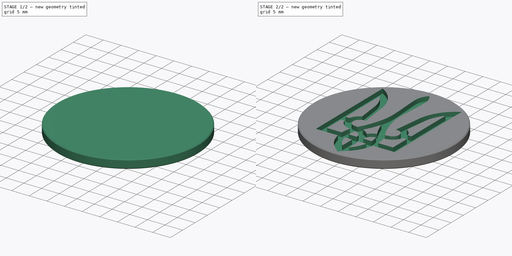
[diagram: build sequence overview — one tinted view per stage of 2, left to right]
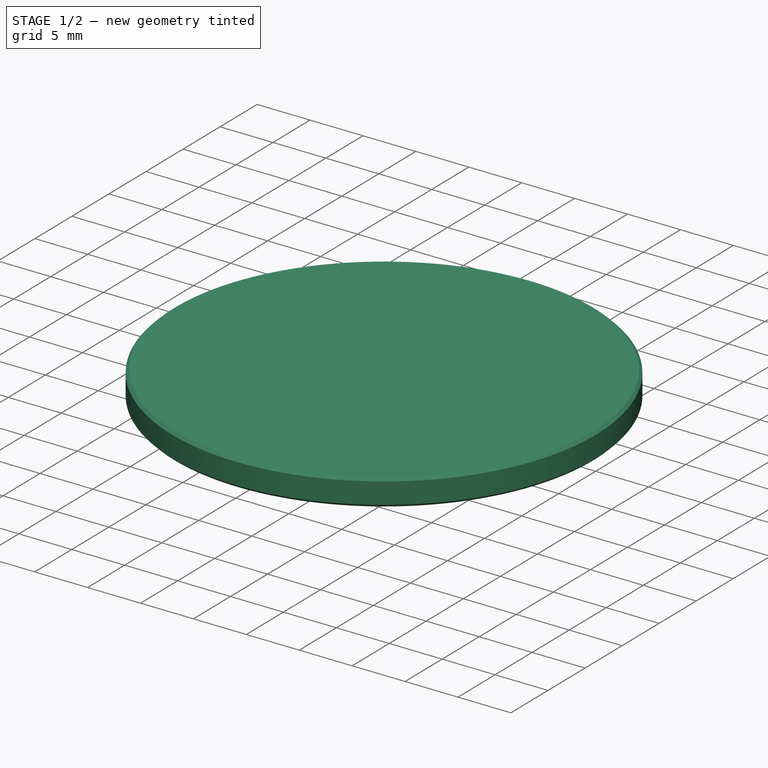
[diagram: stage 1 of 2 — iso view after this stage's code; geometry added in this stage tinted green]
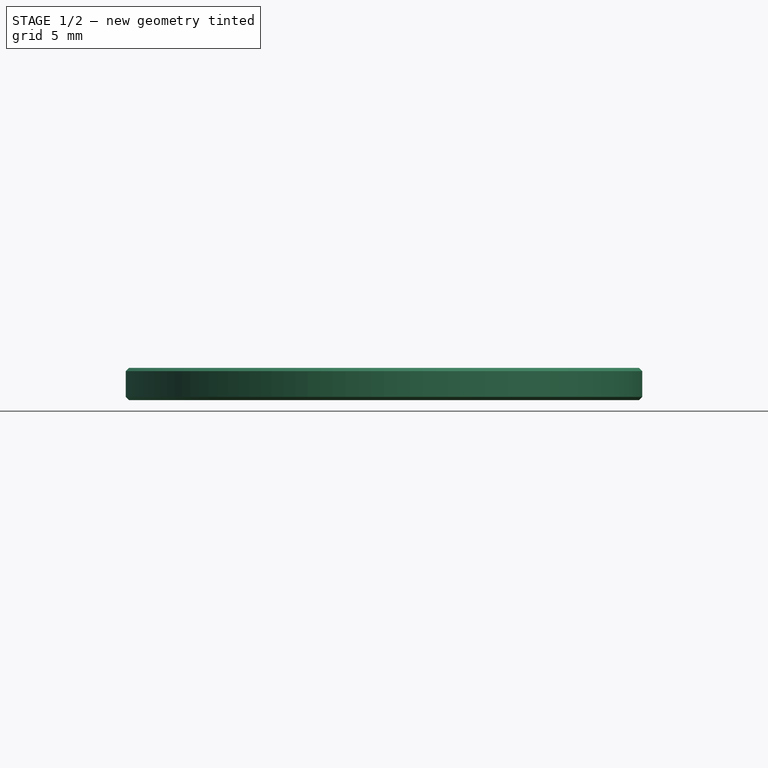
[diagram: stage 1 of 2 — front view after this stage's code; geometry added in this stage tinted green]
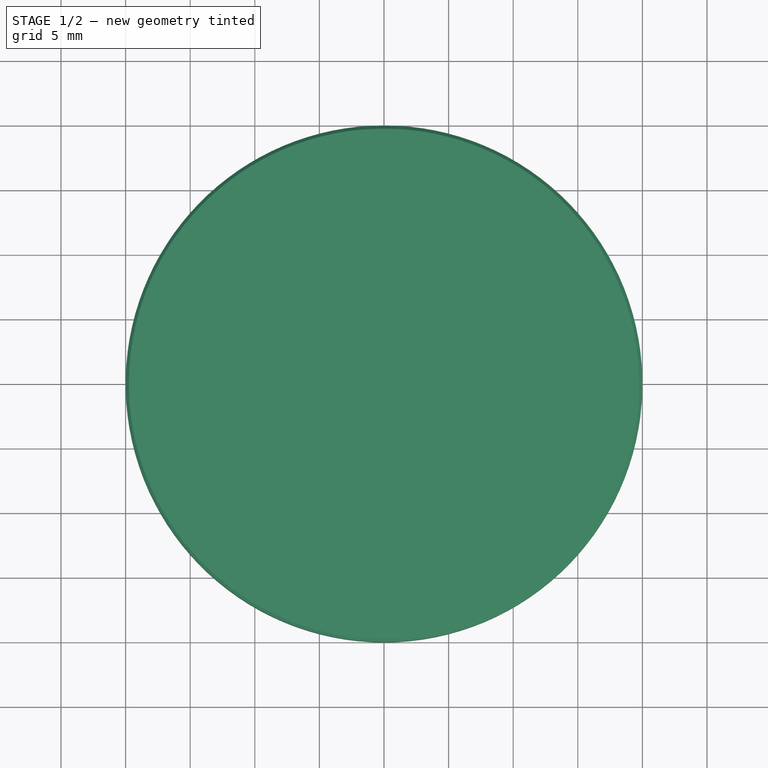
[diagram: stage 1 of 2 — top view after this stage's code; geometry added in this stage tinted green]
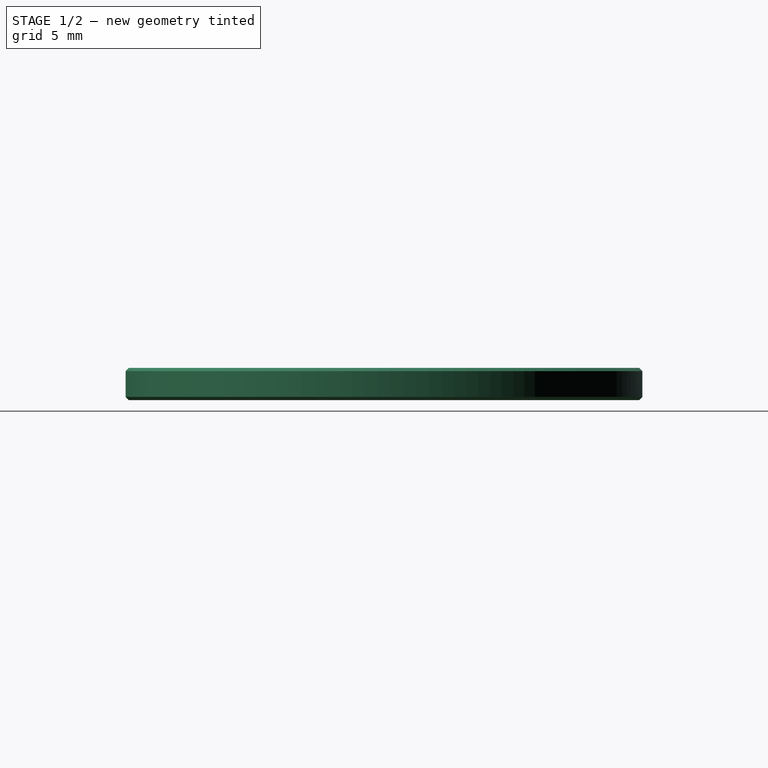
[diagram: stage 1 of 2 — right view after this stage's code; geometry added in this stage tinted green]
FCSTD DOCUMENT  (FreeCAD 0.20R29603 (Git))
Label: ukraine-14053
License: All rights reserved
LicenseURL: http://en.wikipedia.org/wiki/All_rights_reserved
objects: Part::Feature×25, Sketcher::SketchObject×5, App::DocumentObjectGroup×4, PartDesign::Plane×2, Part::FeaturePython×2, App::TextDocument×1, Spreadsheet::Sheet×1, PartDesign::Revolution×1, PartDesign::Pocket×1, PartDesign::Body×1
note: 39 computed .brp shape members not serialized (recipe doc carries the construction recipe); baked Part::Feature solids carry a one-line shape summary decoded from their .brp

FEATURE [App::TextDocument] Text_document  label="Text document"
  Text = https://publicdomainvectors.org/en/free-clipart/Ukraine-Armed-Forces-emblem-vector-image/14053.html
FEATURE [Spreadsheet::Sheet] Spreadsheet
  cells = A2=Vector X center; B2=vec_x; C2(dim_vec_x)==-74.5 mm; A3=Vector Y center; B3=vec_y; C3(dim_vec_y)==73.75 mm; A4=Coin radius; B4=coin_r; C4(dim_coin_r)==20 mm; A5=Coin height; B5=coin_h; C5(dim_coin_h)==2.5 mm; A6=Engrave depth; B6=engrave_h; C6(dim_engrave_h)==dim_coin_h / 2; A7=SVG Scale; B7=svg_scale; C7=0.68; A8=Chamfer width; B8=chamfer_w; C8(dim_chamfer_w)==dim_coin_h / 10; A9=Edge dimple radius; B9=dimple_r; C9(dim_dimple_r)==0.5 mm; A10=Edge dimple count; B10=dimple_count; C10(dim_dimple_count)=64
FEATURE [PartDesign::Plane] DatumPlane  label="BaseXYDatumPlane"
  Length = 60
  MapMode = 5
  ResizeMode = 0
  Support = -> [XY_Plane]
  Width = 60
FEATURE [Sketcher::SketchObject] Sketch001  label="CircleSketch"
  FullyConstrained = true
  MapMode = 5
  Support = -> [DatumPlane]
  expr: Constraints[1] = Spreadsheet.dim_coin_r - Spreadsheet.dim_chamfer_w
  expr: Constraints[3] = Spreadsheet.dim_coin_r - 1 mm
  sketch-geometry (2):
    g0: Circle CenterX=0 CenterY=0 CenterZ=0 NormalX=0 NormalY=0 NormalZ=1 AngleXU=0 Radius=19.75
    g1: Circle CenterX=0 CenterY=0 CenterZ=0 NormalX=0 NormalY=0 NormalZ=1 AngleXU=0 Radius=19
  constraints (4):
    c: Coincident(g0,g-1)
    c: Radius(g0) = 19.75
    c: Coincident(g1,g0)
    c: Radius(g1) = 19
FEATURE [PartDesign::Plane] DatumPlane001  label="ProfileYZDatumPlane"
  Length = 60
  MapMode = 5
  Placement = pos=(0,0,0) rot=(0.57735,0.57735,0.57735;2.0944rad)
  ResizeMode = 0
  Support = -> [YZ_Plane]
  Width = 60
FEATURE [Sketcher::SketchObject] Sketch  label="CoinProfileSketch"
  FullyConstrained = true
  MapMode = 5
  Placement = pos=(0,0,0) rot=(0.57735,0.57735,0.57735;2.0944rad)
  Support = -> [DatumPlane001]
  expr: Constraints[22] = Spreadsheet.dim_chamfer_w
  expr: Constraints[24] = Spreadsheet.dim_coin_h
  expr: Constraints[25] = Spreadsheet.dim_coin_r
  expr: Constraints[26] = Spreadsheet.dim_coin_r
  expr: Constraints[27] = Spreadsheet.dim_coin_h
  sketch-geometry (10):
    g0: LineSegment StartX=0 StartY=-1e-16 StartZ=0 EndX=0 EndY=-2.5 EndZ=0
    g1: LineSegment StartX=0 StartY=-1e-16 StartZ=0 EndX=19.75 EndY=-1e-16 EndZ=0
    g2: LineSegment StartX=19.75 StartY=-1e-16 StartZ=0 EndX=20 EndY=-0.25 EndZ=0
    g3: LineSegment StartX=20 StartY=-0.25 StartZ=0 EndX=20 EndY=-2.25 EndZ=0
    g4: LineSegment StartX=20 StartY=-2.25 StartZ=0 EndX=19.75 EndY=-2.5 EndZ=0
    g5: LineSegment StartX=19.75 StartY=-2.5 StartZ=0 EndX=0 EndY=-2.5 EndZ=0
    g6: LineSegment StartX=19.75 StartY=-1e-16 StartZ=0 EndX=20 EndY=-1e-16 EndZ=0
    g7: LineSegment StartX=20 StartY=-1e-16 StartZ=0 EndX=20 EndY=-0.25 EndZ=0
    g8: LineSegment StartX=20 StartY=-2.25 StartZ=0 EndX=20 EndY=-2.5 EndZ=0
    g9: LineSegment StartX=19.75 StartY=-2.5 StartZ=0 EndX=20 EndY=-2.5 EndZ=0
  constraints (28):
    c: Vertical(g0)
    c: Coincident(g0,g1)
    c: Horizontal(g1)
    c: Coincident(g1,g2)
    c: Coincident(g2,g3)
    c: Vertical(g3)
    c: Coincident(g3,g4)
    c: Coincident(g4,g5)
    c: Coincident(g5,g0)
    c: Horizontal(g5)
    c: Coincident(g6,g1)
    c: Horizontal(g6)
    c: Coincident(g7,g6)
    c: Coincident(g7,g2)
    c: Coincident(g8,g3)
    c: Vertical(g8)
    c: Coincident(g9,g4)
    c: Coincident(g9,g8)
    c: Horizontal(g9)
    c: Vertical(g7)
    c: Equal(g6,g7)
    c: Equal(g8,g9)
    c: DistanceY(g8,g8) = 0.25
    c: Equal(g8,g7)
    c: DistanceY(g8,g6) = 2.5
    c: DistanceX(g0,g8) = 20
    c: DistanceX(g-1,g6) = 20
    c: DistanceY(g0,g-1) = 2.5
FEATURE [PartDesign::Revolution] Revolution  label="CoinRevolution"
  Angle = 360
  Axis = (-1e-16,1e-16,1)
  Base = (0,0,0)
  Placement = pos=(0,0,0) rot=(0.57735,0.57735,0.57735;2.0944rad)
  Profile = -> Sketch
  ReferenceAxis = -> Sketch [V_Axis]
  Reversed = true
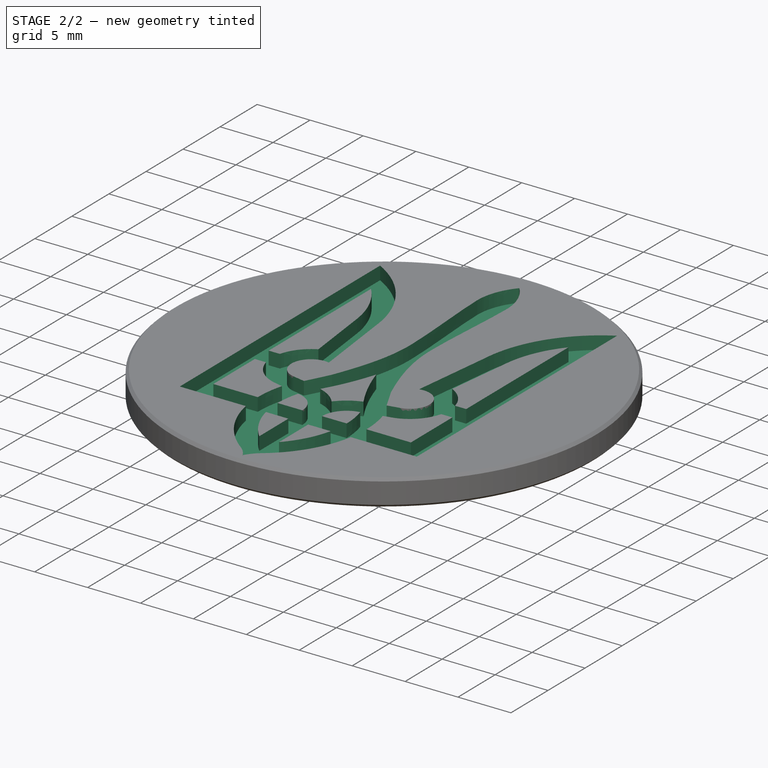
[diagram: stage 2 of 2 — iso view after this stage's code; geometry added in this stage tinted green]
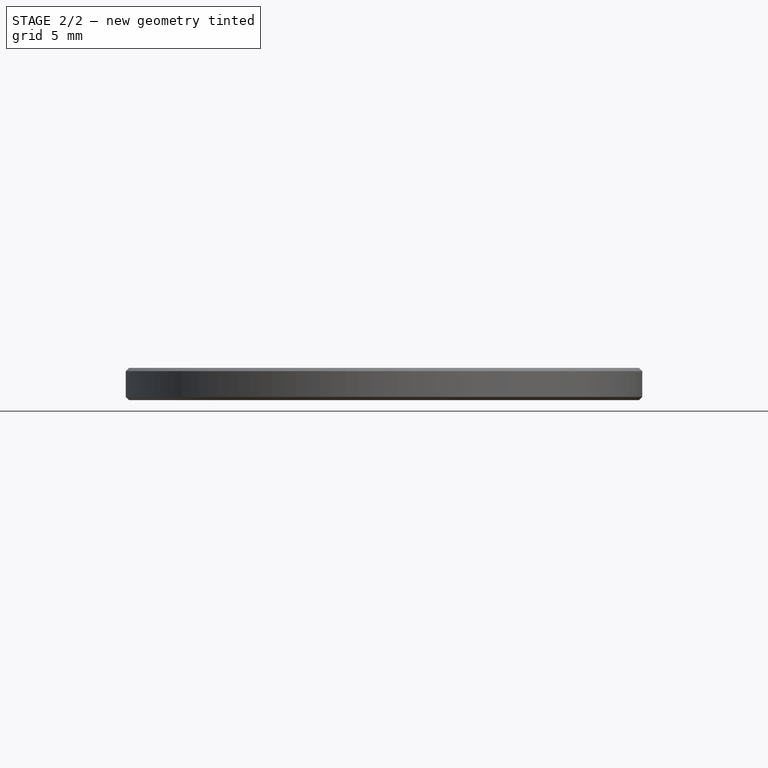
[diagram: stage 2 of 2 — front view after this stage's code; geometry added in this stage tinted green]
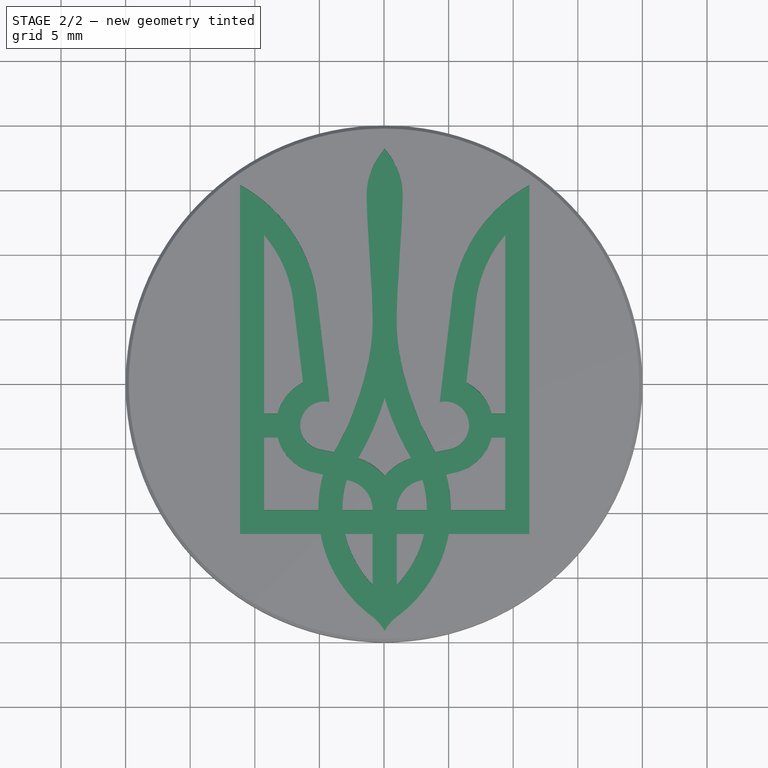
[diagram: stage 2 of 2 — top view after this stage's code; geometry added in this stage tinted green]
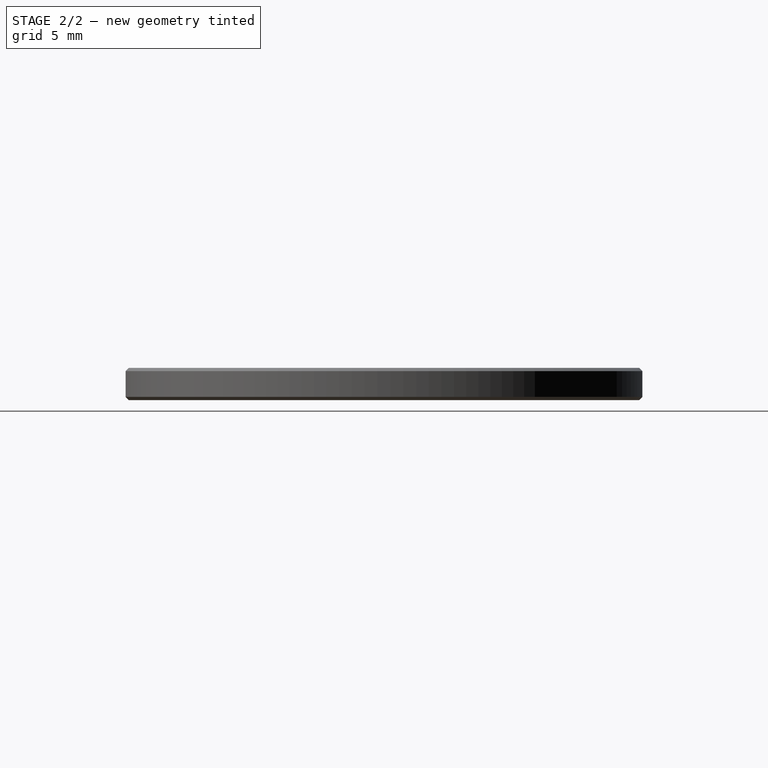
[diagram: stage 2 of 2 — right view after this stage's code; geometry added in this stage tinted green]
FEATURE [Sketcher::SketchObject] Sketch002  label="CoinEdgeProfileSketch"
  FullyConstrained = true
  MapMode = 5
  Placement = pos=(0,0,0) rot=(0.57735,0.57735,0.57735;2.0944rad)
  Support = -> [DatumPlane001]
  expr: Constraints[20] = Spreadsheet.dim_chamfer_w
  expr: Constraints[22] = Spreadsheet.dim_coin_h
  expr: Constraints[23] = Spreadsheet.dim_coin_r
  expr: Constraints[24] = Spreadsheet.dim_coin_r
  expr: Constraints[25] = Spreadsheet.dim_coin_h
  sketch-geometry (13):
    g0: LineSegment StartX=0 StartY=0 StartZ=0 EndX=0 EndY=-2.5 EndZ=0
    g1: LineSegment StartX=19.75 StartY=0 StartZ=0 EndX=20 EndY=-0.25 EndZ=0
    g2: LineSegment StartX=20 StartY=-0.25 StartZ=0 EndX=20 EndY=-2.25 EndZ=0
    g3: LineSegment StartX=20 StartY=-2.25 StartZ=0 EndX=19.75 EndY=-2.5 EndZ=0
    g4: LineSegment StartX=19.75 StartY=0 StartZ=0 EndX=20 EndY=0 EndZ=0
    g5: LineSegment StartX=20 StartY=0 StartZ=0 EndX=20 EndY=-0.25 EndZ=0
    g6: LineSegment StartX=20 StartY=-2.25 StartZ=0 EndX=20 EndY=-2.5 EndZ=0
    g7: LineSegment StartX=19.75 StartY=-2.5 StartZ=0 EndX=20 EndY=-2.5 EndZ=0
    g8: LineSegment StartX=0 StartY=0 StartZ=0 EndX=19 EndY=0 EndZ=0
    g9: LineSegment StartX=19 StartY=0 StartZ=0 EndX=19.75 EndY=0 EndZ=0
    g10: LineSegment StartX=19.75 StartY=-2.5 StartZ=0 EndX=19 EndY=-2.5 EndZ=0
    g11: LineSegment StartX=19 StartY=-2.5 StartZ=0 EndX=0 EndY=-2.5 EndZ=0
    g12: LineSegment StartX=19 StartY=0 StartZ=0 EndX=19 EndY=-2.5 EndZ=0
  constraints (36):
    c: Vertical(g0)
    c: Coincident(g0,g8)
    c: Coincident(g9,g1)
    c: Coincident(g1,g2)
    c: Vertical(g2)
    c: Coincident(g2,g3)
    c: Coincident(g3,g10)
    c: Coincident(g11,g0)
    c: Coincident(g4,g9)
    c: Horizontal(g4)
    c: Coincident(g5,g4)
    c: Coincident(g5,g1)
    c: Coincident(g6,g2)
    c: Vertical(g6)
    c: Coincident(g7,g3)
    c: Coincident(g7,g6)
    c: Horizontal(g7)
    c: Vertical(g5)
    c: Equal(g4,g5)
    c: Equal(g6,g7)
    c: DistanceY(g6,g6) = 0.25
    c: Equal(g6,g5)
    c: DistanceY(g6,g4) = 2.5
    c: DistanceX(g0,g6) = 20
    c: DistanceX(g-1,g4) = 20
    c: DistanceY(g0,g-1) = 2.5
    c: Coincident(g8,g9)
    c: Horizontal(g8)
    c: Horizontal(g9)
    c: Coincident(g10,g11)
    c: Horizontal(g10)
    c: Horizontal(g11)
    c: Coincident(g12,g9)
    c: Coincident(g12,g10)
    c: Vertical(g12)
    c: DistanceX(g9,g4) = 1
FEATURE [Sketcher::SketchObject] Sketch004  label="EdgeDimpleSketch"
  FullyConstrained = true
  MapMode = 5
  Support = -> [DatumPlane]
  expr: Constraints[2] = Spreadsheet.dim_coin_r
  sketch-geometry (2):
    g0: LineSegment StartX=0 StartY=0 StartZ=0 EndX=20 EndY=0 EndZ=0
    g1: Circle CenterX=20 CenterY=0 CenterZ=0 NormalX=0 NormalY=0 NormalZ=1 AngleXU=0 Radius=0.5
  constraints (5):
    c: Horizontal(g0)
    c: Coincident(g1,g0)
    c: DistanceX(g0,g0) = 20
    c: Coincident(g0,g-1)
    c: Radius(g1) = 0.5
FEATURE [Part::Feature] path4055
  shape: bbox 59.55 x 66.26 x 2e-07 mm, 1 faces, 0 solids (baked)
FEATURE [Part::Feature] path4057
  shape: bbox 64.32 x 69.97 x 2e-07 mm, 1 faces, 0 solids (baked)
FEATURE [Part::Feature] path4057001
  shape: bbox 54.77 x 62.55 x 2e-07 mm, 1 faces, 0 solids (baked)
FEATURE [Part::Feature] path3795
  shape: bbox 59.55 x 66.26 x 2e-07 mm, 1 faces, 0 solids (baked)
FEATURE [Part::Feature] path3797
  shape: bbox 64.32 x 69.97 x 2e-07 mm, 1 faces, 0 solids (baked)
FEATURE [Part::Feature] path3797001
  shape: bbox 54.77 x 62.55 x 2e-07 mm, 1 faces, 0 solids (baked)
FEATURE [Part::Feature] path4696
  shape: bbox 68.74 x 68.74 x 4.018e-07 mm, 1 faces, 0 solids (baked)
FEATURE [Part::Feature] path7306_9
  shape: bbox 32.94 x 54.88 x 2e-07 mm, 1 faces, 0 solids (baked)
FEATURE [Part::Feature] path7306_9001
  shape: bbox 4.428 x 20.31 x 2e-07 mm, 1 faces, 0 solids (baked)
FEATURE [Part::Feature] path7306_9002
  shape: bbox 4.428 x 20.31 x 2e-07 mm, 1 faces, 0 solids (baked)
FEATURE [Part::Feature] path7306_9003
  shape: bbox 6.026 x 8.856 x 2e-07 mm, 1 faces, 0 solids (baked)
FEATURE [Part::Feature] path7306_9004
  shape: bbox 6.722 x 8.234 x 2e-07 mm, 1 faces, 0 solids (baked)
FEATURE [Part::Feature] path7306_9005
  shape: bbox 6.722 x 8.234 x 2e-07 mm, 1 faces, 0 solids (baked)
FEATURE [Part::Feature] path7306_9006
  shape: bbox 3.431 x 3.388 x 2e-07 mm, 1 faces, 0 solids (baked)
FEATURE [Part::Feature] path7306_9007
  shape: bbox 3.431 x 3.388 x 2e-07 mm, 1 faces, 0 solids (baked)
FEATURE [Part::Feature] path7306_9008
  shape: bbox 3.12 x 5.779 x 2e-07 mm, 1 faces, 0 solids (baked)
FEATURE [Part::Feature] path7306_9009
  shape: bbox 3.12 x 5.779 x 2e-07 mm, 1 faces, 0 solids (baked)
FEATURE [App::DocumentObjectGroup] Group  label="SVGGroup"
  Group = -> [path7306_9,path7306_9001,path7306_9002,path7306_9003,path7306_9004,path7306_9005,path7306_9006,path7306_9007,path7306_9008,path7306_9009]
FEATURE [Part::Feature] path2915
  shape: bbox 72.46 x 72.44 x 2e-07 mm, 1 faces, 0 solids (baked)
FEATURE [Part::Feature] path2915001
  shape: bbox 65.01 x 65.03 x 2e-07 mm, 1 faces, 0 solids (baked)
FEATURE [Part::Feature] path4441
  shape: bbox 56.13 x 55 x 2e-07 mm, 1 faces, 0 solids (baked)
FEATURE [Part::Feature] path4494
  shape: bbox 55.54 x 55.3 x 2e-07 mm, 1 faces, 0 solids (baked)
FEATURE [Part::Feature] path4599
  shape: bbox 55.56 x 56.01 x 2e-07 mm, 1 faces, 0 solids (baked)
FEATURE [Part::Feature] path4601
  shape: bbox 56.21 x 54.79 x 2e-07 mm, 1 faces, 0 solids (baked)
FEATURE [Part::Feature] path4639
  shape: bbox 69.76 x 66.21 x 2e-07 mm, 1 faces, 0 solids (baked)
FEATURE [App::DocumentObjectGroup] Group001  label="BadgeGroup"
  Group = -> [path2915001,path2915,path4441,path4494,path4599,path4601,path4639,path4055,path4057,path4057001,path3795,path3797,path3797001,path4696]
FEATURE [Part::Feature] path4639001
  shape: bbox 32.85 x 53.69 x 2e-07 mm, 1 faces, 0 solids (baked)
FEATURE [App::DocumentObjectGroup] Group002  label="CrestGroup"
  Group = -> [path4639001]
FEATURE [Part::FeaturePython] Clone  label="resize070"  # Draft clone (typed FeaturePython)
  AttacherType = Attacher::AttachEngine3D
  Fuse = false
  Objects = -> [path7306_9009,path7306_9,path7306_9001,path7306_9002,path7306_9003,path7306_9004,path7306_9005,path7306_9006,path7306_9007,path7306_9008]
  Placement = pos=(-77,76,0) rot=(0,0,1;0rad)
  Scale = (0.7,0.7,0.7)
FEATURE [Part::FeaturePython] Clone001  label="resize068"  # Draft clone (typed FeaturePython)
  AttacherType = Attacher::AttachEngine3D
  Fuse = false
  Objects = -> [path7306_9,path7306_9001,path7306_9002,path7306_9003,path7306_9004,path7306_9005,path7306_9006,path7306_9007,path7306_9008,path7306_9009]
  Placement = pos=(-74.5,73.75,0) rot=(0,0,1;0rad)
  Scale = (0.68,0.68,0.68)
FEATURE [App::DocumentObjectGroup] Group003  label="Group"
  Group = -> [Clone,Clone001]
FEATURE [Sketcher::SketchObject] Sketch005  label="VectorSketch"
  FullyConstrained = false
  sketch-geometry (68):
    g0: BSplineCurve PolesCount=4 KnotsCount=2 Degree=3 IsPeriodic=0
    g1: BSplineCurve PolesCount=4 KnotsCount=2 Degree=3 IsPeriodic=0
    g2: BSplineCurve PolesCount=4 KnotsCount=2 Degree=3 IsPeriodic=0
    g3: BSplineCurve PolesCount=4 KnotsCount=2 Degree=3 IsPeriodic=0
    g4: BSplineCurve PolesCount=2 KnotsCount=2 Degree=1 IsPeriodic=0
    g5: BSplineCurve PolesCount=4 KnotsCount=2 Degree=3 IsPeriodic=0
    g6: BSplineCurve PolesCount=4 KnotsCount=2 Degree=3 IsPeriodic=0
    g7: BSplineCurve PolesCount=2 KnotsCount=2 Degree=1 IsPeriodic=0
    g8: BSplineCurve PolesCount=2 KnotsCount=2 Degree=1 IsPeriodic=0
    g9: BSplineCurve PolesCount=4 KnotsCount=2 Degree=3 IsPeriodic=0
    g10: BSplineCurve PolesCount=4 KnotsCount=2 Degree=3 IsPeriodic=0
    g11: BSplineCurve PolesCount=2 KnotsCount=2 Degree=1 IsPeriodic=0
    g12: BSplineCurve PolesCount=2 KnotsCount=2 Degree=1 IsPeriodic=0
    g13: BSplineCurve PolesCount=4 KnotsCount=2 Degree=3 IsPeriodic=0
    g14: BSplineCurve PolesCount=4 KnotsCount=2 Degree=3 IsPeriodic=0
    g15: BSplineCurve PolesCount=4 KnotsCount=2 Degree=3 IsPeriodic=0
    g16: BSplineCurve PolesCount=4 KnotsCount=2 Degree=3 IsPeriodic=0
    g17: BSplineCurve PolesCount=2 KnotsCount=2 Degree=1 IsPeriodic=0
    g18: BSplineCurve PolesCount=2 KnotsCount=2 Degree=1 IsPeriodic=0
    g19: BSplineCurve PolesCount=4 KnotsCount=2 Degree=3 IsPeriodic=0
    g20: BSplineCurve PolesCount=4 KnotsCount=2 Degree=3 IsPeriodic=0
    g21: BSplineCurve PolesCount=2 KnotsCount=2 Degree=1 IsPeriodic=0
    g22: BSplineCurve PolesCount=2 KnotsCount=2 Degree=1 IsPeriodic=0
    g23: BSplineCurve PolesCount=4 KnotsCount=2 Degree=3 IsPeriodic=0
    g24: BSplineCurve PolesCount=4 KnotsCount=2 Degree=3 IsPeriodic=0
    g25: BSplineCurve PolesCount=2 KnotsCount=2 Degree=1 IsPeriodic=0
    g26: BSplineCurve PolesCount=4 KnotsCount=2 Degree=3 IsPeriodic=0
    g27: BSplineCurve PolesCount=4 KnotsCount=2 Degree=3 IsPeriodic=0
    g28: BSplineCurve PolesCount=4 KnotsCount=2 Degree=3 IsPeriodic=0
    g29: BSplineCurve PolesCount=4 KnotsCount=2 Degree=3 IsPeriodic=0
    g30: BSplineCurve PolesCount=4 KnotsCount=2 Degree=3 IsPeriodic=0
    g31: BSplineCurve PolesCount=2 KnotsCount=2 Degree=1 IsPeriodic=0
    g32: BSplineCurve PolesCount=4 KnotsCount=2 Degree=3 IsPeriodic=0
    g33: BSplineCurve PolesCount=2 KnotsCount=2 Degree=1 IsPeriodic=0
    g34: BSplineCurve PolesCount=2 KnotsCount=2 Degree=1 IsPeriodic=0
    g35: BSplineCurve PolesCount=2 KnotsCount=2 Degree=1 IsPeriodic=0
    g36: BSplineCurve PolesCount=2 KnotsCount=2 Degree=1 IsPeriodic=0
    g37: BSplineCurve PolesCount=4 KnotsCount=2 Degree=3 IsPeriodic=0
    g38: BSplineCurve PolesCount=2 KnotsCount=2 Degree=1 IsPeriodic=0
    g39: BSplineCurve PolesCount=4 KnotsCount=2 Degree=3 IsPeriodic=0
    g40: BSplineCurve PolesCount=4 KnotsCount=2 Degree=3 IsPeriodic=0
    g41: BSplineCurve PolesCount=4 KnotsCount=2 Degree=3 IsPeriodic=0
    g42: BSplineCurve PolesCount=4 KnotsCount=2 Degree=3 IsPeriodic=0
    g43: BSplineCurve PolesCount=4 KnotsCount=2 Degree=3 IsPeriodic=0
    g44: BSplineCurve PolesCount=2 KnotsCount=2 Degree=1 IsPeriodic=0
    g45: BSplineCurve PolesCount=4 KnotsCount=2 Degree=3 IsPeriodic=0
    g46: BSplineCurve PolesCount=2 KnotsCount=2 Degree=1 IsPeriodic=0
    g47: BSplineCurve PolesCount=4 KnotsCount=2 Degree=3 IsPeriodic=0
    g48: BSplineCurve PolesCount=2 KnotsCount=2 Degree=1 IsPeriodic=0
    g49: BSplineCurve PolesCount=2 KnotsCount=2 Degree=1 IsPeriodic=0
    g50: BSplineCurve PolesCount=2 KnotsCount=2 Degree=1 IsPeriodic=0
    g51: BSplineCurve PolesCount=2 KnotsCount=2 Degree=1 IsPeriodic=0
    g52: BSplineCurve PolesCount=2 KnotsCount=2 Degree=1 IsPeriodic=0
    g53: BSplineCurve PolesCount=4 KnotsCount=2 Degree=3 IsPeriodic=0
    g54: BSplineCurve PolesCount=2 KnotsCount=2 Degree=1 IsPeriodic=0
    g55: BSplineCurve PolesCount=4 KnotsCount=2 Degree=3 IsPeriodic=0
    g56: BSplineCurve PolesCount=4 KnotsCount=2 Degree=3 IsPeriodic=0
    g57: BSplineCurve PolesCount=2 KnotsCount=2 Degree=1 IsPeriodic=0
    g58: BSplineCurve PolesCount=4 KnotsCount=2 Degree=3 IsPeriodic=0
    g59: BSplineCurve PolesCount=4 KnotsCount=2 Degree=3 IsPeriodic=0
    g60: BSplineCurve PolesCount=2 KnotsCount=2 Degree=1 IsPeriodic=0
    g61: BSplineCurve PolesCount=4 KnotsCount=2 Degree=3 IsPeriodic=0
    g62: BSplineCurve PolesCount=2 KnotsCount=2 Degree=1 IsPeriodic=0
    g63: BSplineCurve PolesCount=2 KnotsCount=2 Degree=1 IsPeriodic=0
    g64: BSplineCurve PolesCount=4 KnotsCount=2 Degree=3 IsPeriodic=0
    g65: BSplineCurve PolesCount=2 KnotsCount=2 Degree=1 IsPeriodic=0
    g66: BSplineCurve PolesCount=4 KnotsCount=2 Degree=3 IsPeriodic=0
    g67: BSplineCurve PolesCount=2 KnotsCount=2 Degree=1 IsPeriodic=0
  constraints (68):
    c: Coincident(g0,g1)
    c: Coincident(g1,g2)
    c: Coincident(g2,g3)
    c: Coincident(g3,g4)
    c: Coincident(g4,g5)
    c: Coincident(g5,g6)
    c: Coincident(g6,g7)
    c: Coincident(g7,g8)
    c: Coincident(g8,g9)
    c: Coincident(g9,g10)
    c: Coincident(g10,g11)
    c: Coincident(g11,g12)
    c: Coincident(g12,g13)
    c: Coincident(g13,g14)
    c: Coincident(g14,g15)
    c: Coincident(g15,g16)
    c: Coincident(g16,g17)
    c: Coincident(g17,g18)
    c: Coincident(g18,g19)
    c: Coincident(g19,g20)
    c: Coincident(g20,g21)
    c: Coincident(g21,g22)
    c: Coincident(g22,g23)
    c: Coincident(g23,g24)
    c: Coincident(g24,g25)
    c: Coincident(g25,g26)
    c: Coincident(g26,g27)
    c: Coincident(g27,g28)
    c: Coincident(g28,g29)
    c: Coincident(g29,g0)
    c: Coincident(g30,g31)
    c: Coincident(g31,g32)
    c: Coincident(g32,g33)
    c: Coincident(g33,g34)
    c: Coincident(g34,g30)
    c: Coincident(g35,g36)
    c: Coincident(g36,g37)
    c: Coincident(g37,g38)
    c: Coincident(g38,g39)
    c: Coincident(g39,g35)
    c: Coincident(g40,g41)
    c: Coincident(g41,g42)
    c: Coincident(g42,g43)
    c: Coincident(g43,g40)
    c: Coincident(g44,g45)
    c: Coincident(g45,g46)
    c: Coincident(g46,g47)
    c: Coincident(g47,g48)
    c: Coincident(g48,g49)
    c: Coincident(g49,g44)
    c: Coincident(g50,g51)
    c: Coincident(g51,g52)
    c: Coincident(g52,g53)
    c: Coincident(g53,g54)
    c: Coincident(g54,g55)
    c: Coincident(g55,g50)
    c: Coincident(g56,g57)
    c: Coincident(g57,g58)
    c: Coincident(g58,g56)
    c: Coincident(g59,g60)
    c: Coincident(g60,g61)
    c: Coincident(g61,g59)
    c: Coincident(g62,g63)
    c: Coincident(g63,g64)
    c: Coincident(g64,g62)
    c: Coincident(g65,g66)
    c: Coincident(g66,g67)
    c: Coincident(g67,g65)
FEATURE [PartDesign::Pocket] Pocket  label="VectorPocket"
  BaseFeature = -> Revolution
  Direction = (0,0,-1)
  Length = 1.25
  Length2 = 5
  Placement = pos=(0,0,0) rot=(0.57735,0.57735,0.57735;2.0944rad)
  Profile = -> Sketch005
  ReferenceAxis = -> Sketch005 [N_Axis]
  Type = 0
  expr: Length = Spreadsheet.dim_engrave_h
FEATURE [PartDesign::Body] Body
  Group = -> [DatumPlane,Sketch001,DatumPlane001,Sketch,Revolution,Sketch002,Sketch004,Sketch005,Pocket]
  Origin = -> Origin
  Tip = -> Pocket
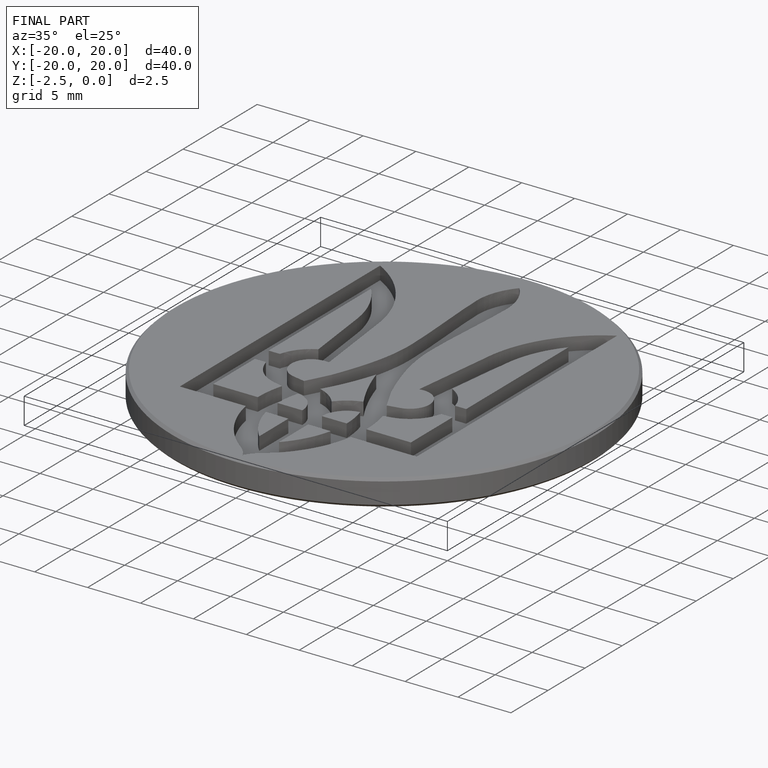
[diagram: finished part — iso view with bounding-box wireframe]
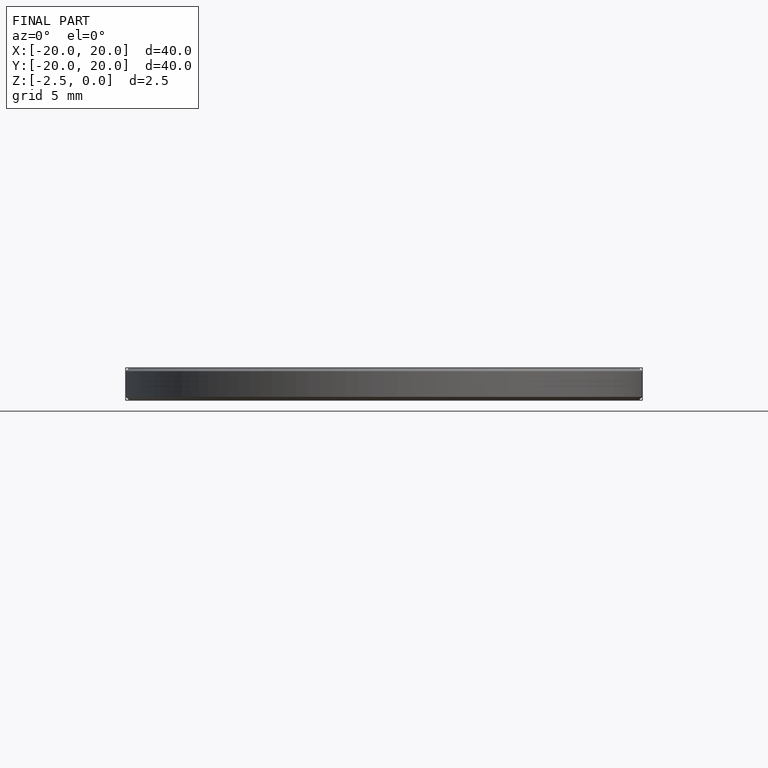
[diagram: finished part — front view with bounding-box wireframe]
